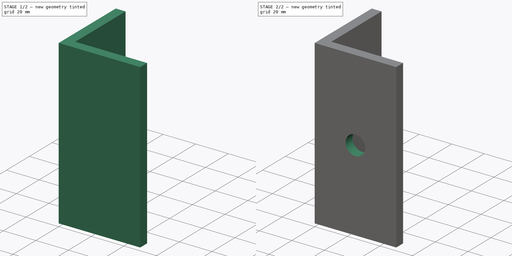
[diagram: build sequence overview — one tinted view per stage of 2, left to right]
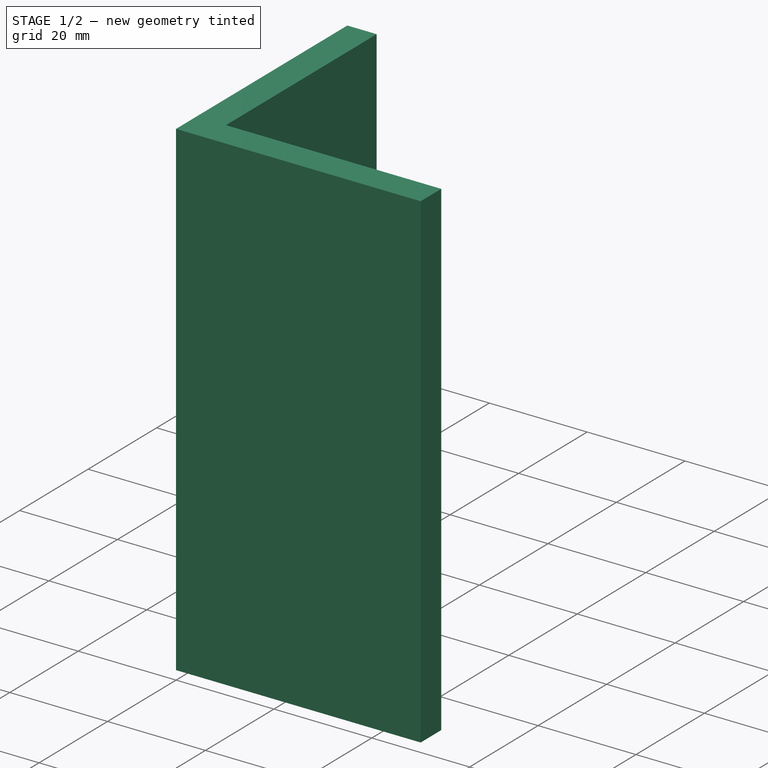
[diagram: stage 1 of 2 — iso view after this stage's code; geometry added in this stage tinted green]
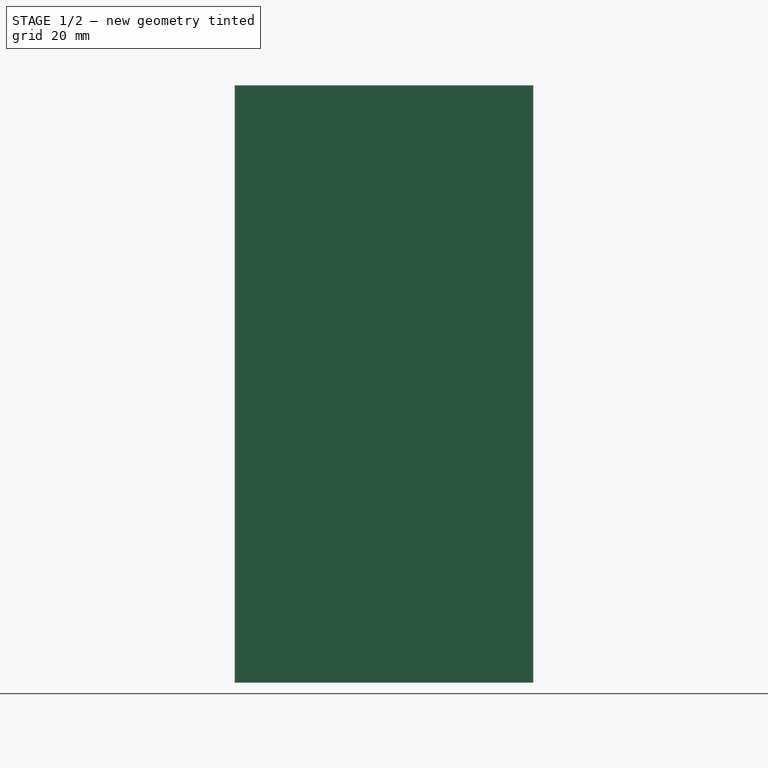
[diagram: stage 1 of 2 — front view after this stage's code; geometry added in this stage tinted green]
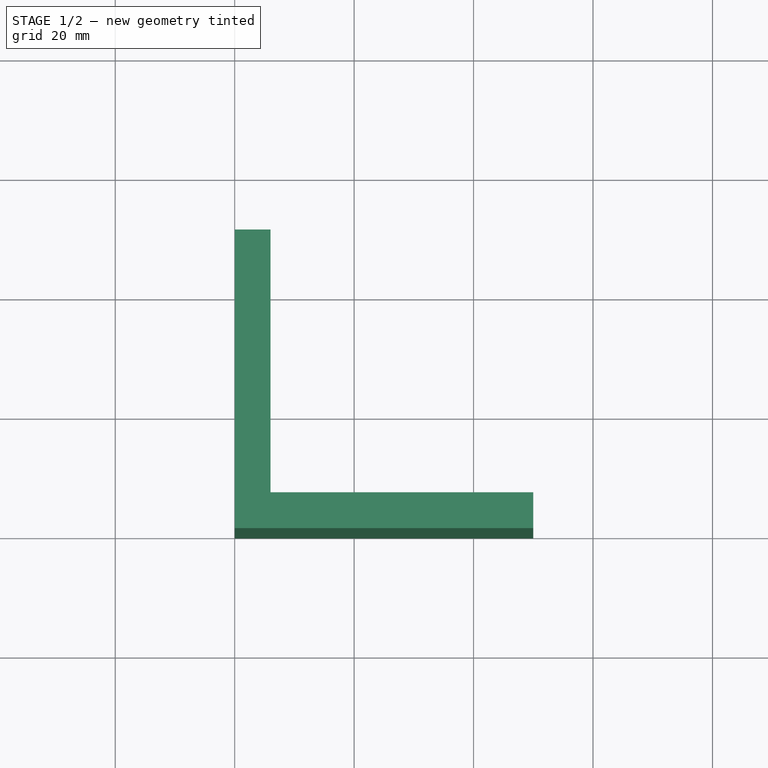
[diagram: stage 1 of 2 — top view after this stage's code; geometry added in this stage tinted green]
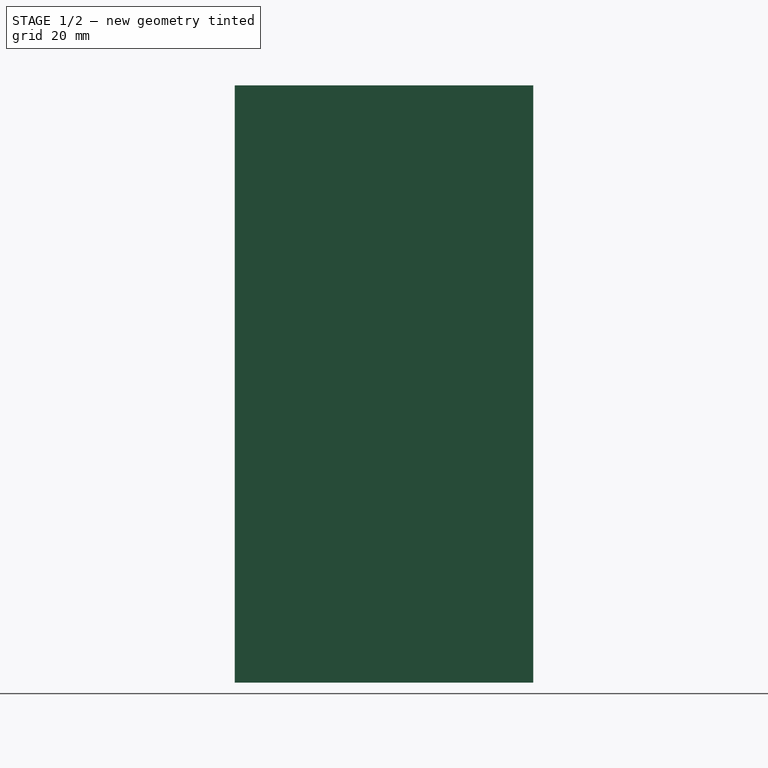
[diagram: stage 1 of 2 — right view after this stage's code; geometry added in this stage tinted green]
FCSTD DOCUMENT  (FreeCAD 0.20R29177 (Git))
Label: Frame_Bracket_End_OneHole
License: All rights reserved
LicenseURL: http://en.wikipedia.org/wiki/All_rights_reserved
objects: Sketcher::SketchObject×2, PartDesign::Pad×1, Spreadsheet::Sheet×1, PartDesign::Pocket×1, PartDesign::Body×1
note: 7 computed .brp shape members not serialized (recipe doc carries the construction recipe); baked Part::Feature solids carry a one-line shape summary decoded from their .brp
EXTERNAL_REF file=../../Master_of_Puppets.FCStd obj=Alternator
EXTERNAL_REF file=../../Master_of_Puppets.FCStd obj=Spreadsheet

FEATURE [Sketcher::SketchObject] Sketch
  FullyConstrained = true
  MapMode = 5
  Support = -> [XY_Plane001]
  expr: Constraints[14] = Spreadsheet.Length
  expr: Constraints[15] = Spreadsheet.Thickness
  sketch-geometry (6):
    g0: LineSegment StartX=0 StartY=0 StartZ=0 EndX=0 EndY=50 EndZ=0
    g1: LineSegment StartX=0 StartY=50 StartZ=0 EndX=6 EndY=50 EndZ=0
    g2: LineSegment StartX=6 StartY=50 StartZ=0 EndX=6 EndY=6 EndZ=0
    g3: LineSegment StartX=6 StartY=6 StartZ=0 EndX=50 EndY=6 EndZ=0
    g4: LineSegment StartX=50 StartY=6 StartZ=0 EndX=50 EndY=0 EndZ=0
    g5: LineSegment StartX=50 StartY=0 StartZ=0 EndX=0 EndY=0 EndZ=0
  constraints (17):
    c: Coincident(g-1,g0)
    c: Vertical(g0)
    c: Coincident(g0,g1)
    c: Horizontal(g1)
    c: Coincident(g1,g2)
    c: Vertical(g2)
    c: Coincident(g2,g3)
    c: Horizontal(g3)
    c: Coincident(g3,g4)
    c: PointOnObject(g4,g-1)
    c: Vertical(g4)
    c: Coincident(g4,g5)
    c: Equal(g1,g4)
    c: Equal(g0,g5)
    c: DistanceY(g0,g0) = 50
    c: DistanceX(g1,g1) = 6
    c: Coincident(g5,g-1)
FEATURE [PartDesign::Pad] Pad
  AllowMultiFace = false
  Direction = (0,0,1)
  Length = 100
  Length2 = 100
  Profile = -> Sketch
  Type = 0
  expr: Length = Spreadsheet.Depth
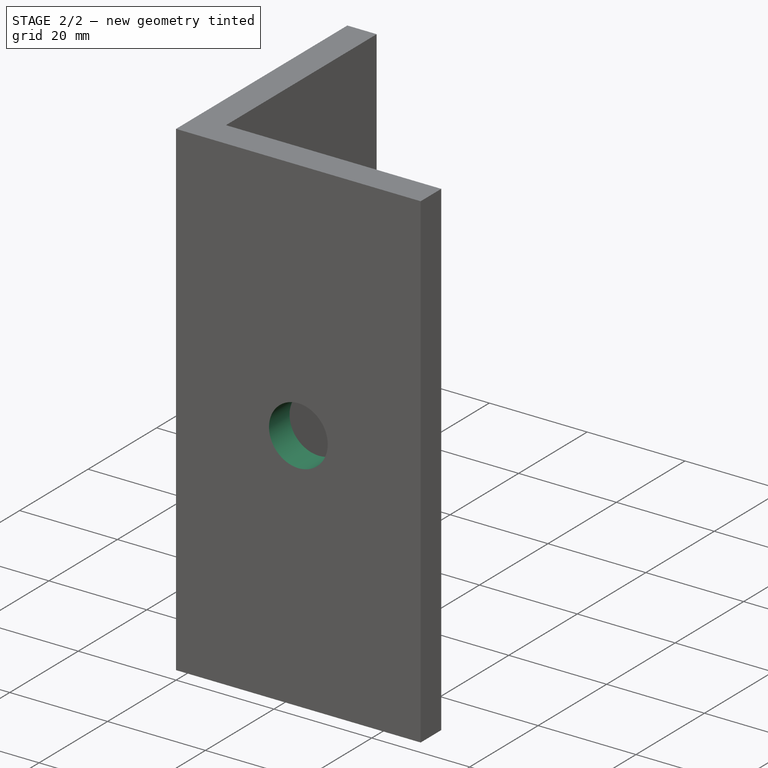
[diagram: stage 2 of 2 — iso view after this stage's code; geometry added in this stage tinted green]
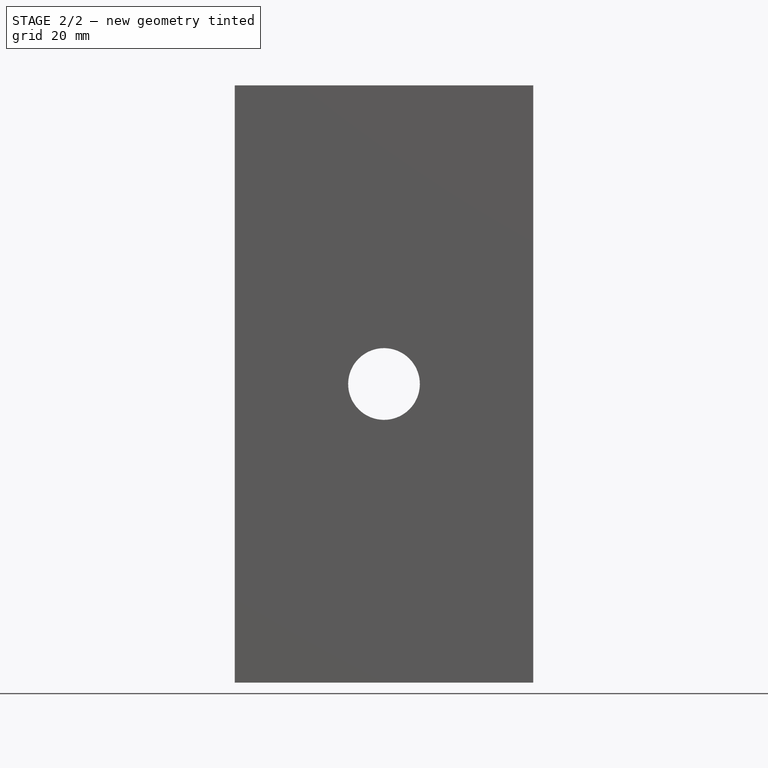
[diagram: stage 2 of 2 — front view after this stage's code; geometry added in this stage tinted green]
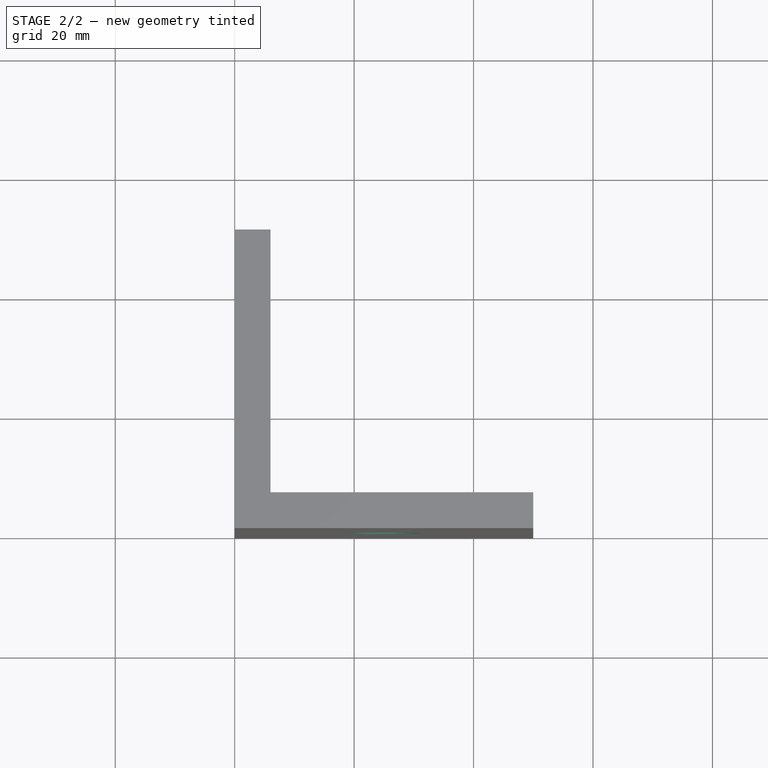
[diagram: stage 2 of 2 — top view after this stage's code; geometry added in this stage tinted green]
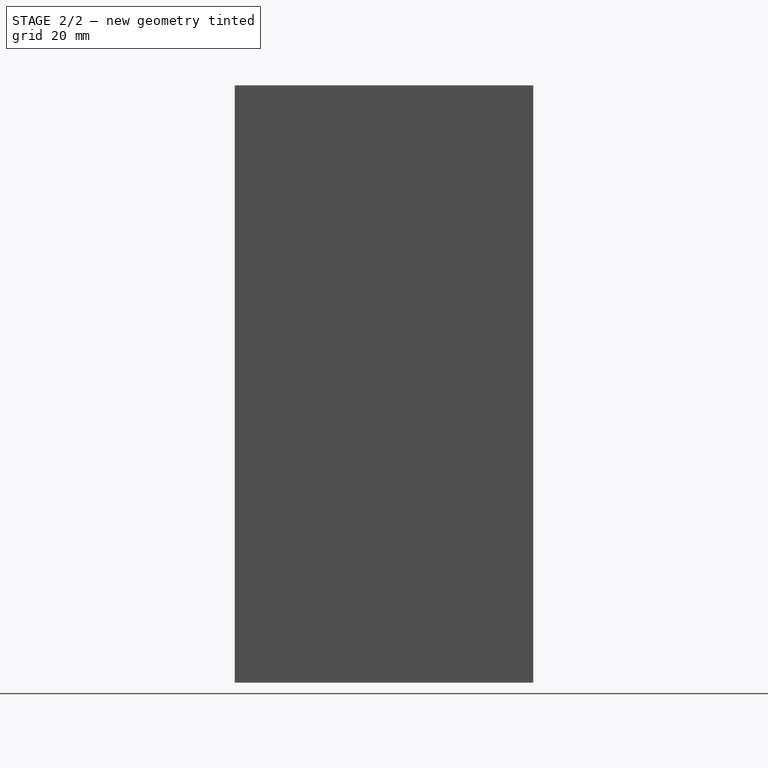
[diagram: stage 2 of 2 — right view after this stage's code; geometry added in this stage tinted green]
FEATURE [Spreadsheet::Sheet] Spreadsheet
  cells = A1=Inputs; A2=Thickness; B2(Thickness)==Master_of_Puppets#Spreadsheet.MetalThicknessL; A3=Length; B3(Length)==Master_of_Puppets#Spreadsheet.MetalLengthL; A4=HolesRadius; B4(HolesRadius)==Master_of_Puppets#Alternator.HolesRadius; A5=Depth; B5(Depth)==Master_of_Puppets#Alternator.D; A6=Calculated; A7=CircleXCenter; B7(CircleXCenter)==Length / 2; A8=CircleYCenter; B8(CircleYCenter)==Depth / 2
FEATURE [Sketcher::SketchObject] Sketch001
  FullyConstrained = true
  MapMode = 5
  Placement = pos=(0,0,0) rot=(1,0,0;1.5708rad)
  Support = -> [Pad]
  expr: Constraints[2] = Spreadsheet.CircleYCenter
  expr: Constraints[3] = Spreadsheet.HolesRadius
  expr: Constraints[5] = Spreadsheet.CircleXCenter
  sketch-geometry (2):
    g0: LineSegment StartX=0 StartY=0 StartZ=0 EndX=0 EndY=50 EndZ=0
    g1: Circle CenterX=25 CenterY=50 CenterZ=0 NormalX=0 NormalY=0 NormalZ=1 AngleXU=0 Radius=6
  constraints (6):
    c: Coincident(g0,g-1)
    c: PointOnObject(g0,g-2)
    c: DistanceY(g0,g0) = 50
    c: Radius(g1) = 6
    c: Horizontal(g1,g0)
    c: DistanceX(g-2,g1) = 25
FEATURE [PartDesign::Pocket] Pocket
  AllowMultiFace = false
  BaseFeature = -> Pad
  Direction = (0,1,-2e-16)
  Length = 5
  Length2 = 100
  Profile = -> Sketch001
  Type = 1
FEATURE [PartDesign::Body] PocketBody  label="Frame_Bracket_End_OneHole"
  Group = -> [Sketch,Pad,Sketch001,Pocket]
  Origin = -> Origin001
  Placement = pos=(-50,50,0) rot=(0.707107,0,0.707107;3.14159rad)
  Tip = -> Pocket
  expr: .Placement.Base.x = -<<Spreadsheet>>.Depth / 2
  expr: .Placement.Base.y = <<Spreadsheet>>.Length
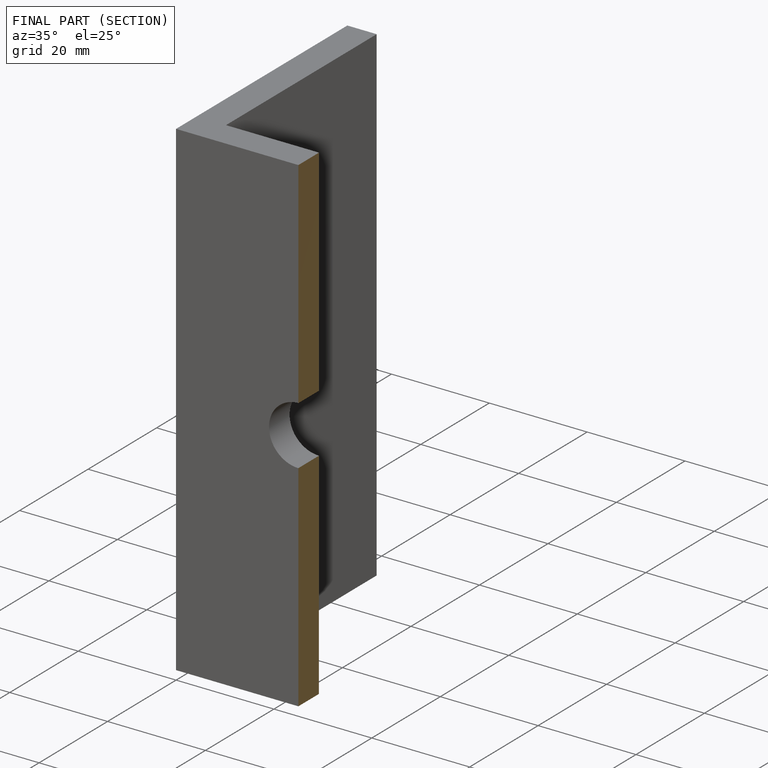
[diagram: finished part — half-section view (interior)]
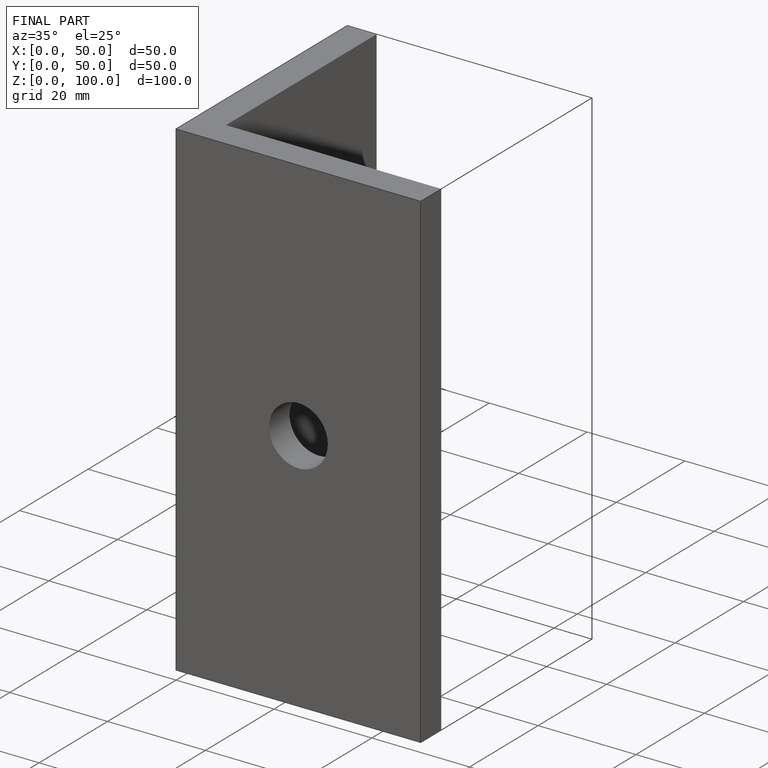
[diagram: finished part — iso view with bounding-box wireframe]
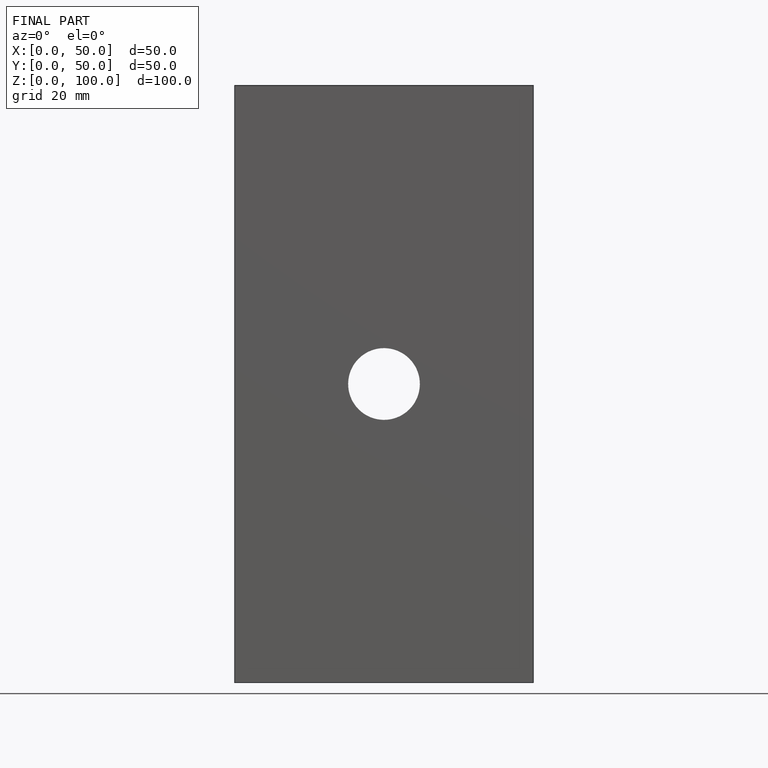
[diagram: finished part — front view with bounding-box wireframe]
